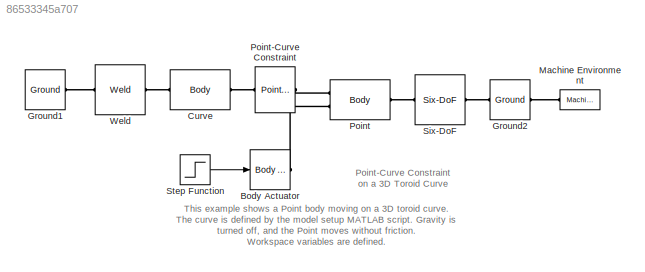
MODEL slx_86533345a707
KIND model
CONFIG AbsTol = auto
CONFIG EnableMultiTasking = on
CONFIG FixedStep = auto
CONFIG MaxStep = auto
CONFIG MinStep = auto
CONFIG PreLoadFcn = mech_toroid_setup;
CONFIG RelTol = 1e-3
CONFIG SampleTimeConstraint = Unconstrained
CONFIG Solver = ode45
CONFIG SolverName = ode45
CONFIG StartFcn = mech_toroid_setup(gcs);
CONFIG StartTime = 0.0
CONFIG StopTime = 150
BLOCK [Reference] Body Actuator  REF=mblibv1/Sensors & 
Actuators/Body Actuator
  Ports = [1, 0, 0, 0, 0, 0, 1]
  SourceBlock = mblibv1/Sensors & \nActuators/Body Actuator
  SourceProductBaseCode = MS
  SourceProductName = Simscape Multibody
  SourceType = Body Actuator
BLOCK [Reference] Curve  REF=mblibv1/Bodies/Body
  Ports = [0, 0, 0, 0, 0, 1, 1]
  SourceBlock = mblibv1/Bodies/Body
  SourceProductBaseCode = MS
  SourceProductName = Simscape Multibody
  SourceType = Body
BLOCK [Reference] Ground1  REF=mblibv1/Bodies/Ground
  Ports = [0, 0, 0, 0, 0, 0, 1]
  SourceBlock = mblibv1/Bodies/Ground
  SourceProductBaseCode = MS
  SourceProductName = Simscape Multibody
  SourceType = Ground
  UserDataPersistent = on
BLOCK [Reference] Ground2  REF=mblibv1/Bodies/Ground
  Ports = [0, 0, 0, 0, 0, 1, 1]
  SourceBlock = mblibv1/Bodies/Ground
  SourceProductBaseCode = MS
  SourceProductName = Simscape Multibody
  SourceType = Ground
  UserDataPersistent = on
BLOCK [Reference] Machine Environment  REF=mblibv1/Bodies/Machine
Environment
  Ports = [0, 0, 0, 0, 0, 0, 1]
  SourceBlock = mblibv1/Bodies/Machine\nEnvironment
  SourceProductBaseCode = MS
  SourceProductName = Simscape Multibody
  SourceType = Machine Environment
  Tag = Factory ground
BLOCK [Reference] Point  REF=mblibv1/Bodies/Body
  Ports = [0, 0, 0, 0, 0, 2, 1]
  SourceBlock = mblibv1/Bodies/Body
  SourceProductBaseCode = MS
  SourceProductName = Simscape Multibody
  SourceType = Body
BLOCK [Reference] Point-Curve Constraint  REF=mblibv1/Constraints & 
Drivers/Point-Curve Constraint
  Ports = [0, 0, 0, 0, 0, 1, 1]
  SourceBlock = mblibv1/Constraints & \nDrivers/Point-Curve Constraint
  SourceProductBaseCode = MS
  SourceProductName = Simscape Multibody
  SourceType = Point-Curve Constraint
BLOCK [Reference] Six-DoF  REF=mblibv1/Joints/Six-DoF
  Ports = [0, 0, 0, 0, 0, 1, 1]
  SourceBlock = mblibv1/Joints/Six-DoF
  SourceProductBaseCode = MS
  SourceProductName = Simscape Multibody
  SourceType = Six-DoF
BLOCK [Step] Step Function
  After = 0
  Before = [-10 -10 -10]
  SampleTime = 0
BLOCK [Reference] Weld  REF=mblibv1/Joints/Weld
  Ports = [0, 0, 0, 0, 0, 1, 1]
  SourceBlock = mblibv1/Joints/Weld
  SourceProductBaseCode = MS
  SourceProductName = Simscape Multibody
  SourceType = Weld
ANNOTATION (root): Point-Curve Constraint on a 3D Toroid Curve
ANNOTATION (root): This example shows a Point body moving on a 3D toroid curve. The curve is defined by the model setup MATLAB script. Gravity is turned off, and the Point moves without friction. Workspace variables are defined.
LINE Step Function:1 -> Body Actuator:1
PLINE Body Actuator:RConn1 -- Point:LConn2
PLINE Curve:LConn1 -- Weld:LConn1
PLINE Curve:RConn1 -- Point-Curve Constraint:RConn1
PLINE Ground1:RConn1 -- Weld:RConn1
PLINE Ground2:LConn1 -- Machine Environment:RConn1
PLINE Ground2:RConn1 -- Six-DoF:RConn1
PLINE Point-Curve Constraint:LConn1 -- Point:LConn1
PLINE Point:RConn1 -- Six-DoF:LConn1
